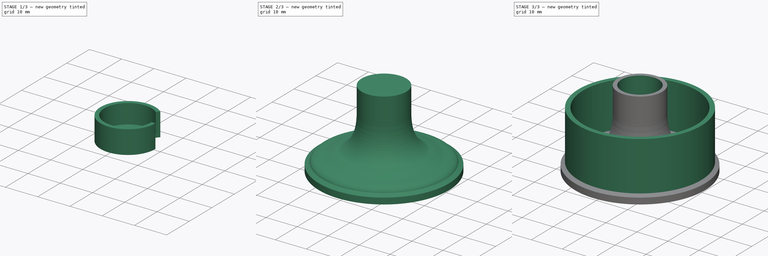
[diagram: build sequence overview — one tinted view per stage of 3, left to right]
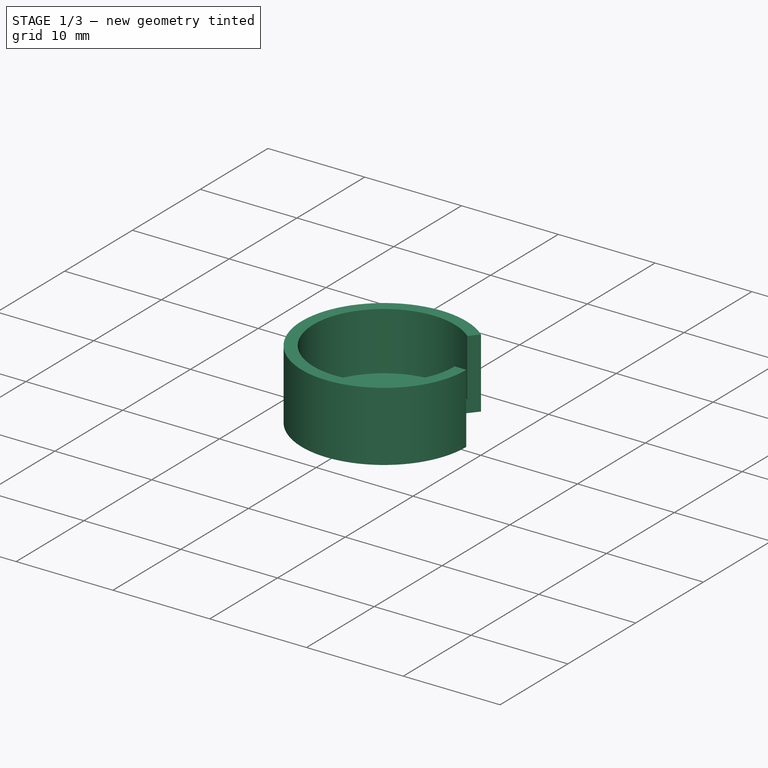
[diagram: stage 1 of 3 — iso view after this stage's code; geometry added in this stage tinted green]
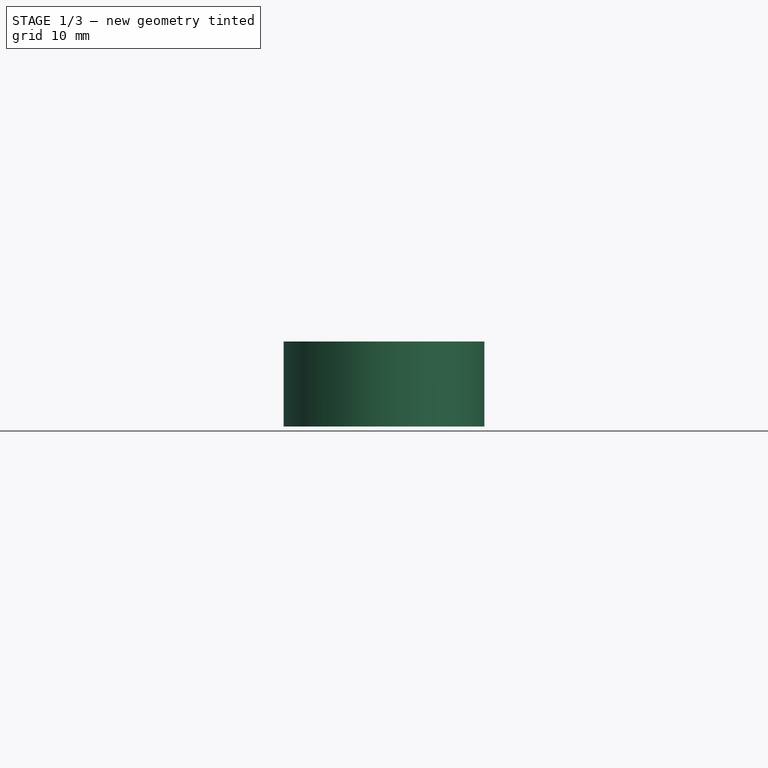
[diagram: stage 1 of 3 — front view after this stage's code; geometry added in this stage tinted green]
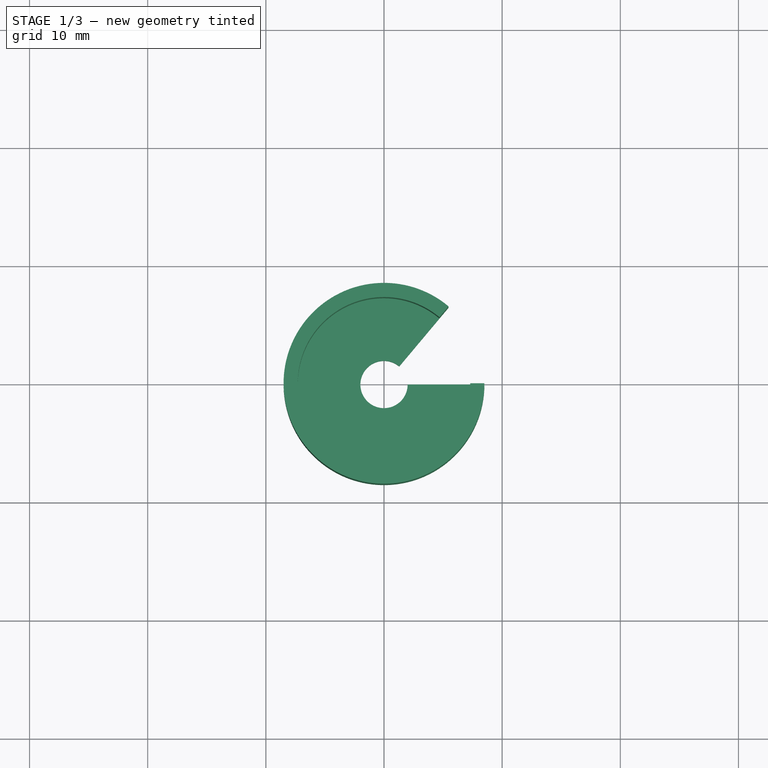
[diagram: stage 1 of 3 — top view after this stage's code; geometry added in this stage tinted green]
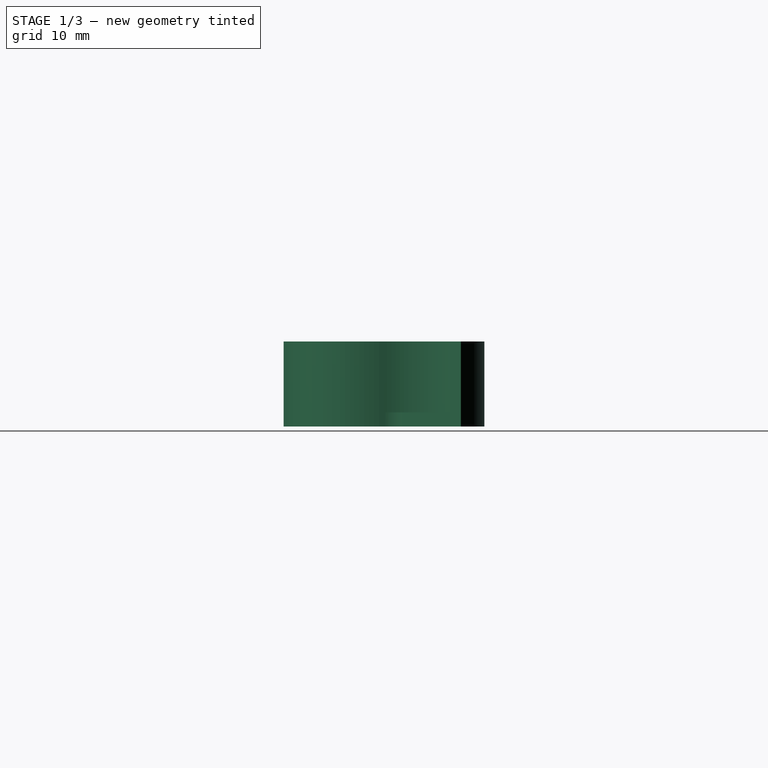
[diagram: stage 1 of 3 — right view after this stage's code; geometry added in this stage tinted green]
FCSTD DOCUMENT  (FreeCAD 0.20R29603 (Git))
Label: kerstbal
License: All rights reserved
LicenseURL: http://en.wikipedia.org/wiki/All_rights_reserved
objects: Sketcher::SketchObject×6, PartDesign::Revolution×4, PartDesign::Body×4, PartDesign::Hole×2, Spreadsheet::Sheet×1
note: 22 computed .brp shape members not serialized (recipe doc carries the construction recipe); baked Part::Feature solids carry a one-line shape summary decoded from their .brp

FEATURE [PartDesign::Body] Body002  label="bottom"
  Group = -> [Sketch003,Revolution002]
  Origin = -> Origin002
  Tip = -> Revolution002
FEATURE [Sketcher::SketchObject] Sketch004
  FullyConstrained = true
  MapMode = 5
  Placement = pos=(0,0,0) rot=(1,0,0;1.5708rad)
  Support = -> [XZ_Plane003]
  expr: Constraints[13] = <<dimensions>>.wall
  expr: Constraints[14] = <<dimensions>>.light_hole_r + <<dimensions>>.wall + 0.1
  expr: Constraints[15] = <<dimensions>>.wall
  expr: Constraints[16] = <<dimensions>>.cap_height
  sketch-geometry (6):
    g0: LineSegment StartX=0 StartY=0 StartZ=0 EndX=8.5 EndY=0 EndZ=0
    g1: LineSegment StartX=8.5 StartY=0 StartZ=0 EndX=8.5 EndY=7.2 EndZ=0
    g2: LineSegment StartX=8.5 StartY=7.2 StartZ=0 EndX=7.3 EndY=7.2 EndZ=0
    g3: LineSegment StartX=7.3 StartY=7.2 StartZ=0 EndX=7.3 EndY=1.2 EndZ=0
    g4: LineSegment StartX=7.3 StartY=1.2 StartZ=0 EndX=0 EndY=1.2 EndZ=0
    g5: LineSegment StartX=0 StartY=1.2 StartZ=0 EndX=0 EndY=0 EndZ=0
  constraints (17):
    c: Coincident(g-1,g0)
    c: PointOnObject(g0,g-1)
    c: Coincident(g0,g1)
    c: Vertical(g1)
    c: Coincident(g1,g2)
    c: Horizontal(g2)
    c: Coincident(g2,g3)
    c: Vertical(g3)
    c: Coincident(g3,g4)
    c: Horizontal(g4)
    c: Coincident(g4,g5)
    c: Coincident(g5,g0)
    c: Vertical(g5)
    c: DistanceY(g0,g4) = 1.2
    c: DistanceX(g4,g3) = 7.3
    c: DistanceX(g2,g1) = 1.2
    c: DistanceY(g3,g2) = 6
FEATURE [PartDesign::Revolution] Revolution003
  Angle = 310
  Axis = (0,-2e-16,1)
  Base = (0,0,0)
  Placement = pos=(0,0,0) rot=(1,0,0;1.5708rad)
  Profile = -> Sketch004
  ReferenceAxis = -> Sketch004 [V_Axis]
  Reversed = true
FEATURE [Sketcher::SketchObject] Sketch005
  FullyConstrained = true
  MapMode = 5
  Placement = pos=(0,0,0) rot=(1,0,0;3.14159rad)
  Support = -> [Revolution003]
  sketch-geometry (1):
    g0: Circle CenterX=0 CenterY=0 CenterZ=0 NormalX=0 NormalY=0 NormalZ=1 AngleXU=0 Radius=2
  constraints (2):
    c: Coincident(g0,g-1)
    c: Radius(g0) = 2
FEATURE [PartDesign::Hole] Hole001
  BaseFeature = -> Revolution003
  CustomThreadClearance = 0
  Depth = 25
  DepthType = 0
  Diameter = 4
  DrillForDepth = false
  DrillPoint = 1
  DrillPointAngle = 118
  HoleCutCountersinkAngle = 90
  HoleCutCustomValues = false
  HoleCutDepth = 0
  HoleCutDiameter = 6.1
  HoleCutType = 0
  ModelThread = false
  Placement = pos=(0,0,0) rot=(1,0,0;1.5708rad)
  Profile = -> Revolution003 [Face1]
  Tapered = false
  TaperedAngle = 90
  ThreadClass = 0
  ThreadDepth = 25
  ThreadDepthType = 0
  ThreadDirection = 0
  ThreadFit = 0
  ThreadSize = 0
  ThreadType = 0
  Threaded = false
  UseCustomThreadClearance = false
FEATURE [PartDesign::Body] Body003  label="dop"
  Group = -> [Sketch004,Revolution003,Sketch005,Hole001]
  Origin = -> Origin003
  Tip = -> Hole001
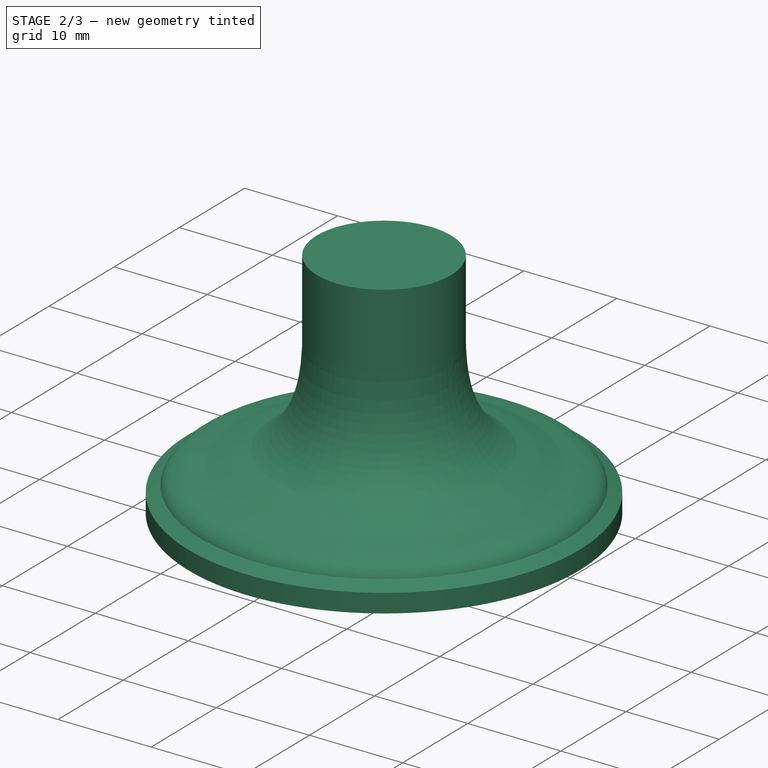
[diagram: stage 2 of 3 — iso view after this stage's code; geometry added in this stage tinted green]
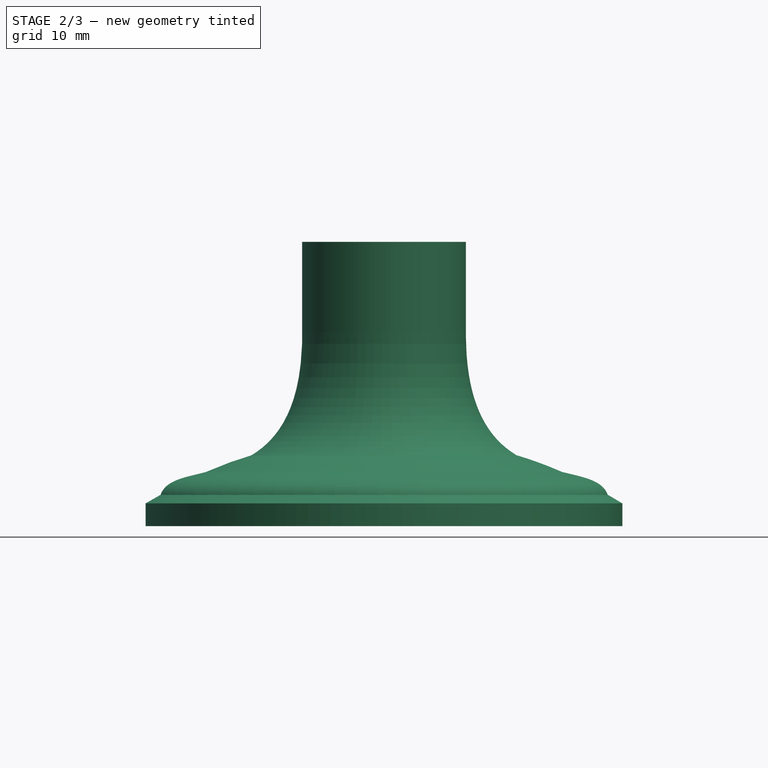
[diagram: stage 2 of 3 — front view after this stage's code; geometry added in this stage tinted green]
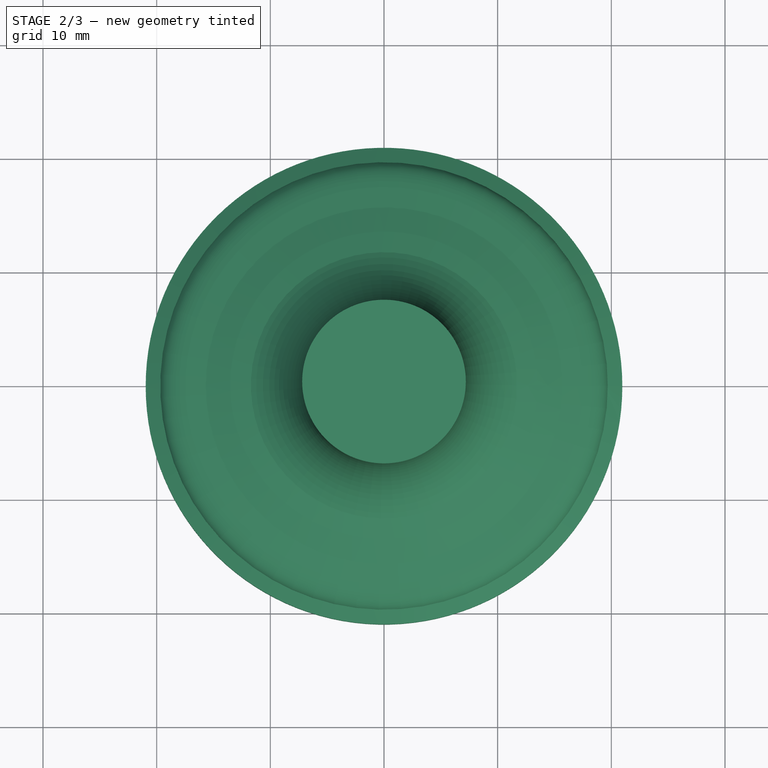
[diagram: stage 2 of 3 — top view after this stage's code; geometry added in this stage tinted green]
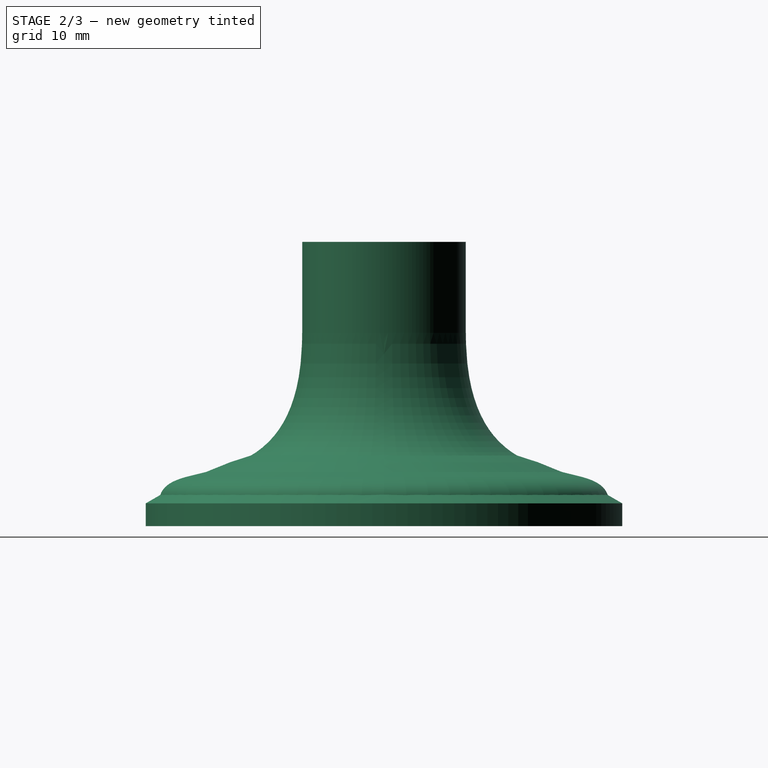
[diagram: stage 2 of 3 — right view after this stage's code; geometry added in this stage tinted green]
FEATURE [PartDesign::Body] Body  label="kaarshouder"
  Group = -> [Sketch,Revolution]
  Origin = -> Origin
  Tip = -> Revolution
FEATURE [Sketcher::SketchObject] Sketch001
  FullyConstrained = true
  MapMode = 5
  Placement = pos=(0,0,0) rot=(1,0,0;1.5708rad)
  Support = -> [XZ_Plane001]
  expr: Constraints[11] = <<dimensions>>.innerrim_r
  expr: Constraints[12] = <<dimensions>>.outerrim_r
  expr: Constraints[13] = <<dimensions>>.outerrim_high_r
  expr: Constraints[14] = <<dimensions>>.rim_height
  expr: Constraints[17] = <<dimensions>>.wall
  expr: Constraints[36] = <<dimensions>>.cap_height + 2
  expr: Constraints[40] = <<dimensions>>.light_hole_r + <<dimensions>>.wall
  sketch-geometry (16):
    g0: LineSegment StartX=16 StartY=0 StartZ=0 EndX=16 EndY=2 EndZ=0
    g1: LineSegment StartX=16 StartY=2 StartZ=0 EndX=18.6 EndY=2 EndZ=0
    g2: LineSegment StartX=18.6 StartY=2 StartZ=0 EndX=18.2 EndY=0 EndZ=0
    g3: LineSegment StartX=18.2 StartY=0 StartZ=0 EndX=19.8 EndY=0 EndZ=0
    g4: LineSegment StartX=19.8 StartY=0 StartZ=0 EndX=19.8 EndY=2 EndZ=0
    g5: LineSegment StartX=16 StartY=0 StartZ=0 EndX=0 EndY=0 EndZ=0
    g6-g9: Circle x4 (B-spline internal-alignment scaffolding for g10; pole/knot coordinates omitted)
    g10: BSplineCurve PolesCount=4 KnotsCount=2 Degree=3 IsPeriodic=0
    g11: GeomPoint X=19.8 Y=2 Z=0
    g12: GeomPoint X=7.2 Y=17 Z=0
    g13: LineSegment StartX=7.2 StartY=17 StartZ=0 EndX=7.2 EndY=25 EndZ=0
    g14: LineSegment StartX=7.2 StartY=25 StartZ=0 EndX=0 EndY=25 EndZ=0
    g15: LineSegment StartX=0 StartY=25 StartZ=0 EndX=0 EndY=0 EndZ=0
  constraints (40):
    c: PointOnObject(g0,g-1)
    c: Vertical(g0)
    c: Coincident(g0,g1)
    c: Horizontal(g1)
    c: Coincident(g1,g2)
    c: PointOnObject(g2,g-1)
    c: Coincident(g2,g3)
    c: Horizontal(g3)
    c: Coincident(g3,g4)
    c: Vertical(g4)
    c: Coincident(g0,g5)
    c: DistanceX(g-1,g0) = 16
    c: DistanceX(g-1,g2) = 18.2
    c: DistanceX(g-1,g1) = 18.6
    c: DistanceY(g2,g1) = 2
    c: Coincident(g5,g-1)
    c: Horizontal(g4,g1)
    c: DistanceX(g1,g4) = 1.2
    c: Weight(g6) = 1
    c: Coincident(g10,g4)
    c: Equal(g6,g7)
    c: Equal(g6,g8)
    c: Equal(g6,g9)
    c: InternalAlignment(g6-g9 -> g10) x4
    c: InternalAlignment(g11,g10)
    c: InternalAlignment(g12,g10)
    c: Vertical(g4,g7)
    c: Vertical(g10,g8)
    c: Coincident(g13,g10)
    c: Vertical(g13)
    c: Coincident(g14,g13)
    c: PointOnObject(g14,g-2)
    c: Horizontal(g14)
    c: DistanceY(g10,g13) = 8
    c: DistanceY(g5,g14) = 25
    c: DistanceY(g8,g10) = 16
    c: DistanceY(g4,g7) = 5
    c: DistanceX(g14,g13) = 7.2
    c: Coincident(g15,g5)
    c: Coincident(g14,g15)
FEATURE [PartDesign::Revolution] Revolution001
  Angle = 360
  Axis = (0,-2e-16,1)
  Base = (0,0,0)
  Placement = pos=(0,0,0) rot=(1,0,0;1.5708rad)
  Profile = -> Sketch001
  ReferenceAxis = -> Sketch001 [V_Axis]
  Reversed = true
FEATURE [PartDesign::Body] Body001  label="top"
  Group = -> [Sketch001,Revolution001,Sketch002,Hole]
  Origin = -> Origin001
  Tip = -> Hole
FEATURE [Sketcher::SketchObject] Sketch003
  FullyConstrained = true
  MapMode = 5
  Placement = pos=(0,0,0) rot=(1,0,0;1.5708rad)
  Support = -> [XZ_Plane002]
  expr: Constraints[14] = <<dimensions>>.innerrim_r
  expr: Constraints[15] = <<dimensions>>.outerrim_r
  expr: Constraints[16] = <<dimensions>>.outerrim_high_r
  expr: Constraints[17] = <<dimensions>>.rim_height
  expr: Constraints[25] = <<dimensions>>.wall
  sketch-geometry (9):
    g0: LineSegment StartX=0 StartY=8 StartZ=0 EndX=0 EndY=0 EndZ=0
    g1: LineSegment StartX=0 StartY=0 StartZ=0 EndX=16 EndY=0 EndZ=0
    g2: LineSegment StartX=16 StartY=0 StartZ=0 EndX=16 EndY=2 EndZ=0
    g3: LineSegment StartX=16 StartY=2 StartZ=0 EndX=18.6 EndY=2 EndZ=0
    g4: LineSegment StartX=18.6 StartY=2 StartZ=0 EndX=18.2 EndY=0 EndZ=0
    g5: LineSegment StartX=18.2 StartY=0 StartZ=0 EndX=20.9678 EndY=0 EndZ=0
    g6: LineSegment StartX=20.9678 StartY=0 StartZ=0 EndX=20.9678 EndY=2 EndZ=0
    g7: ArcOfCircle CenterX=0 CenterY=-31.6375 CenterZ=0 NormalX=0 NormalY=0 NormalZ=1 AngleXU=0 Radius=39.6375 StartAngle=1.01339 EndAngle=1.5708
    g8: LineSegment StartX=0 StartY=-31.6375 StartZ=0 EndX=19.1807 EndY=3.05015 EndZ=0
  constraints (27):
    c: PointOnObject(g0,g-2)
    c: Coincident(g0,g-1)
    c: Coincident(g0,g1)
    c: Horizontal(g1)
    c: Coincident(g1,g2)
    c: Coincident(g2,g3)
    c: Horizontal(g3)
    c: Coincident(g3,g4)
    c: Coincident(g4,g5)
    c: Horizontal(g5)
    c: Coincident(g5,g6)
    c: Vertical(g6)
    c: Vertical(g2)
    c: PointOnObject(g5,g-1)
    c: DistanceX(g1,g1) = 16
    c: DistanceX(g0,g4) = 18.2
    c: DistanceX(g0,g3) = 18.6
    c: DistanceY(g5,g6) = 2
    c: Horizontal(g6,g3)
    c: Coincident(g7,g6)
    c: Coincident(g7,g0)
    c: Vertical(g7,g0)
    c: Coincident(g8,g7)
    c: PointOnObject(g8,g7)
    c: PointOnObject(g3,g8)
    c: Distance(g8,g3) = 1.2
    c: DistanceY(g0,g0) = 8
FEATURE [PartDesign::Revolution] Revolution002
  Angle = 360
  Axis = (0,-2e-16,1)
  Base = (0,0,0)
  Placement = pos=(0,0,0) rot=(1,0,0;1.5708rad)
  Profile = -> Sketch003
  ReferenceAxis = -> Sketch003 [V_Axis]
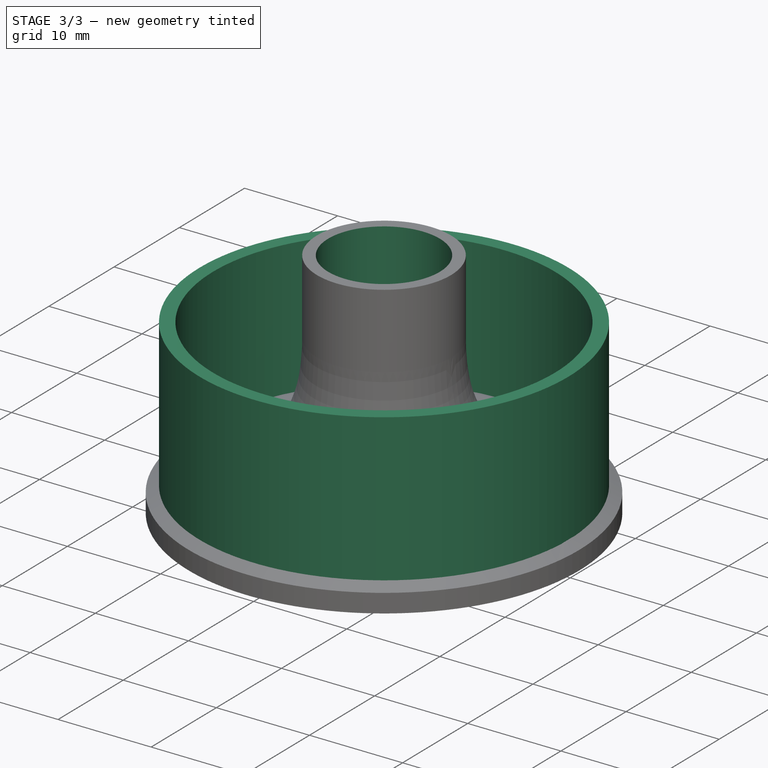
[diagram: stage 3 of 3 — iso view after this stage's code; geometry added in this stage tinted green]
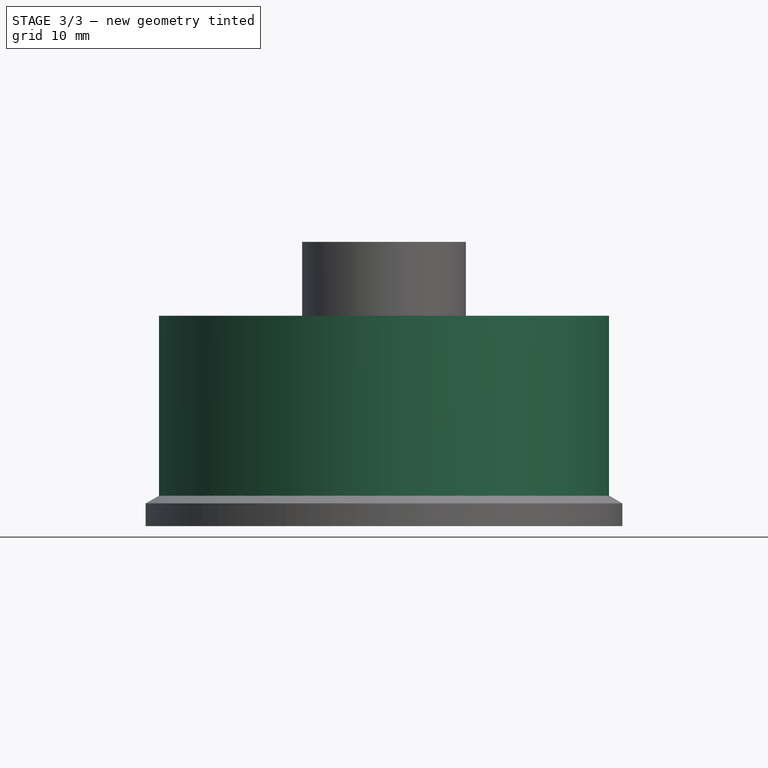
[diagram: stage 3 of 3 — front view after this stage's code; geometry added in this stage tinted green]
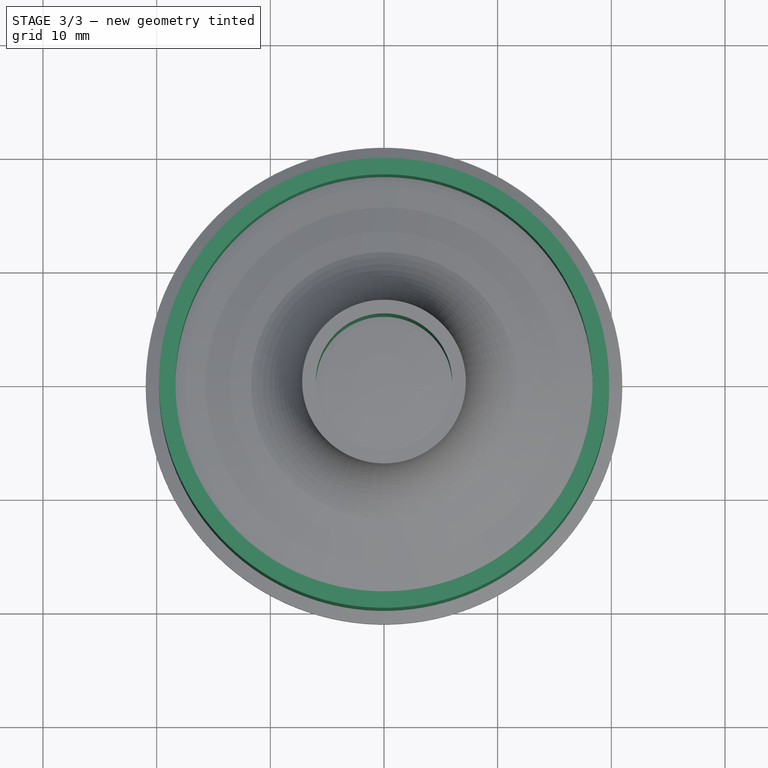
[diagram: stage 3 of 3 — top view after this stage's code; geometry added in this stage tinted green]
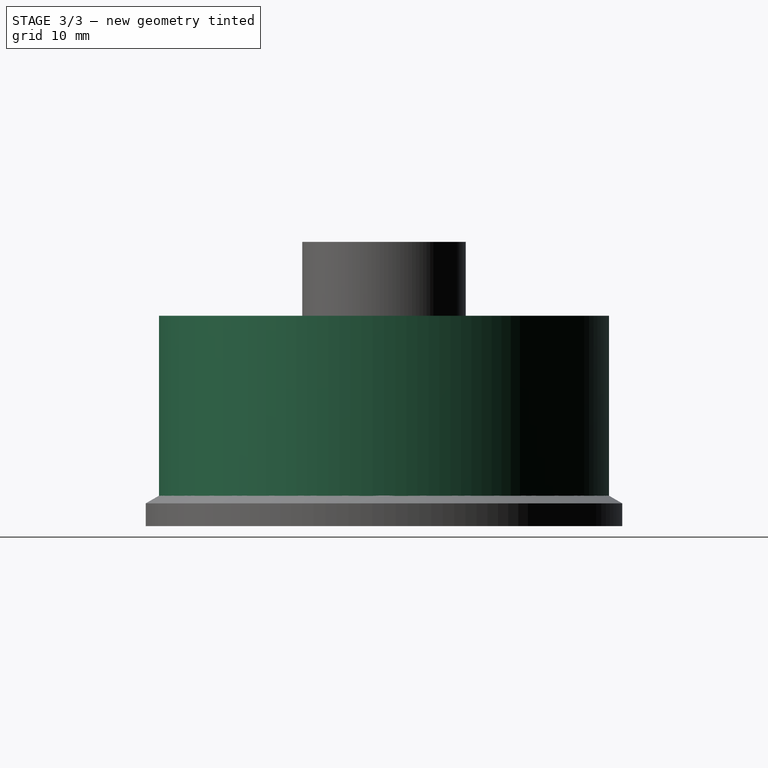
[diagram: stage 3 of 3 — right view after this stage's code; geometry added in this stage tinted green]
FEATURE [Sketcher::SketchObject] Sketch
  FullyConstrained = true
  Placement = pos=(0,0,0) rot=(1,0,0;1.5708rad)
  expr: Constraints[21] = <<dimensions>>.wall
  expr: Constraints[25] = <<dimensions>>.wall
  expr: Constraints[27] = <<dimensions>>.outerrim_r
  expr: Constraints[29] = <<dimensions>>.wall
  sketch-geometry (10):
    g0: LineSegment StartX=16 StartY=0 StartZ=0 EndX=16 EndY=2 EndZ=0
    g1: LineSegment StartX=16 StartY=2 StartZ=0 EndX=18.6 EndY=2 EndZ=0
    g2: LineSegment StartX=18.6 StartY=2 StartZ=0 EndX=18.2 EndY=0 EndZ=0
    g3: LineSegment StartX=18.2 StartY=0 StartZ=0 EndX=19.8 EndY=0 EndZ=0
    g4: LineSegment StartX=19.8 StartY=0 StartZ=0 EndX=19.8 EndY=18.5 EndZ=0
    g5: LineSegment StartX=19.8 StartY=18.5 StartZ=0 EndX=18.35 EndY=18.5 EndZ=0
    g6: LineSegment StartX=18.35 StartY=18.5 StartZ=0 EndX=18.35 EndY=3.2 EndZ=0
    g7: LineSegment StartX=18.35 StartY=3.2 StartZ=0 EndX=14.8 EndY=3.2 EndZ=0
    g8: LineSegment StartX=14.8 StartY=3.2 StartZ=0 EndX=14.8 EndY=0 EndZ=0
    g9: LineSegment StartX=14.8 StartY=0 StartZ=0 EndX=16 EndY=0 EndZ=0
  constraints (30):
    c: PointOnObject(g0,g-1)
    c: Vertical(g0)
    c: Coincident(g0,g1)
    c: Horizontal(g1)
    c: Coincident(g1,g2)
    c: PointOnObject(g2,g-1)
    c: Coincident(g2,g3)
    c: Horizontal(g3)
    c: Coincident(g3,g4)
    c: Vertical(g4)
    c: Coincident(g4,g5)
    c: Horizontal(g5)
    c: Coincident(g5,g6)
    c: Vertical(g6)
    c: Coincident(g6,g7)
    c: Horizontal(g7)
    c: Coincident(g7,g8)
    c: PointOnObject(g8,g-1)
    c: Vertical(g8)
    c: Coincident(g8,g9)
    c: Coincident(g9,g0)
    c: DistanceY(g0,g7) = 1.2
    c: DistanceY(g3,g1) = 2
    c: DistanceX(g-1,g0) = 16
    c: DistanceX(g-1,g5) = 18.35
    c: DistanceX(g7,g0) = 1.2
    c: DistanceX(g-1,g1) = 18.6
    c: DistanceX(g-1,g2) = 18.2
    c: DistanceY(g6,g5) = 15.3
    c: DistanceX(g1,g3) = 1.2
FEATURE [Spreadsheet::Sheet] Spreadsheet  label="dimensions"
  cells = A1=wall; B1(wall)=1.2; A2=innerrim_r; B2(innerrim_r)=16; A3=outerrim_r; B3(outerrim_r)=18.2; A4=outerrim_high_r; B4(outerrim_high_r)=18.6; A5=rim_height; B5(rim_height)=2; A7=light_hole_r; B7(light_hole_r)=6; A8=cap_height; B8(cap_height)=6
FEATURE [PartDesign::Revolution] Revolution
  Angle = 360
  Axis = (0,2e-16,1)
  Base = (0,0,0)
  Placement = pos=(0,0,0) rot=(1,0,0;1.5708rad)
  Profile = -> Sketch
  ReferenceAxis = -> Sketch [V_Axis]
  Reversed = true
FEATURE [Sketcher::SketchObject] Sketch002
  FullyConstrained = true
  MapMode = 5
  Placement = pos=(0,5.6e-15,25) rot=(0,0,1;3.14159rad)
  Support = -> [Revolution001]
  expr: Constraints[1] = 6 - <<dimensions>>.wall
  sketch-geometry (1):
    g0: Circle CenterX=0 CenterY=0 CenterZ=0 NormalX=0 NormalY=0 NormalZ=1 AngleXU=0 Radius=4.8
  constraints (2):
    c: Coincident(g0,g-1)
    c: Radius(g0) = 4.8
FEATURE [PartDesign::Hole] Hole
  BaseFeature = -> Revolution001
  CustomThreadClearance = 0
  Depth = 121.588
  DepthType = 1
  Diameter = 12
  DrillForDepth = false
  DrillPoint = 1
  DrillPointAngle = 118
  HoleCutCountersinkAngle = 90
  HoleCutCustomValues = false
  HoleCutDepth = 0
  HoleCutDiameter = 0
  HoleCutType = 0
  ModelThread = false
  Placement = pos=(0,0,0) rot=(1,0,0;1.5708rad)
  Profile = -> Revolution001 [Face8]
  Tapered = false
  TaperedAngle = 90
  ThreadClass = 0
  ThreadDepth = 121.588
  ThreadDepthType = 0
  ThreadDirection = 0
  ThreadFit = 0
  ThreadSize = 0
  ThreadType = 0
  Threaded = false
  UseCustomThreadClearance = false
  expr: Diameter = 2 * <<dimensions>>.light_hole_r
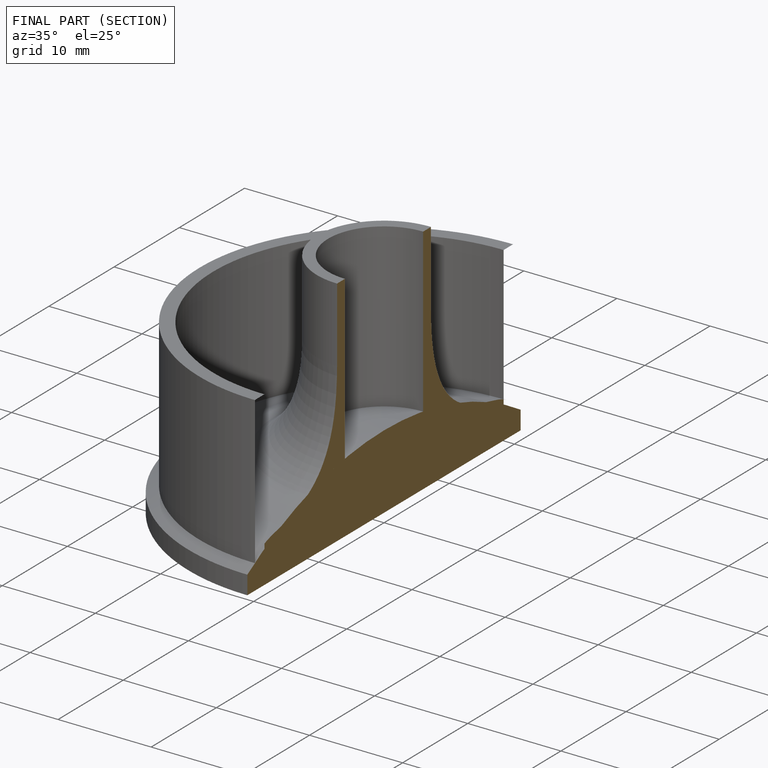
[diagram: finished part — half-section view (interior)]
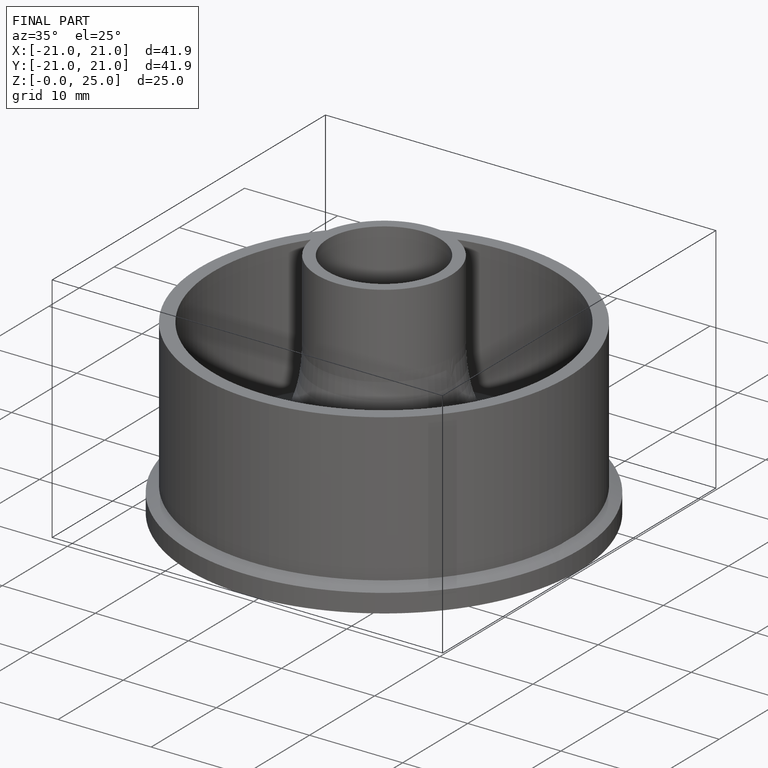
[diagram: finished part — iso view with bounding-box wireframe]
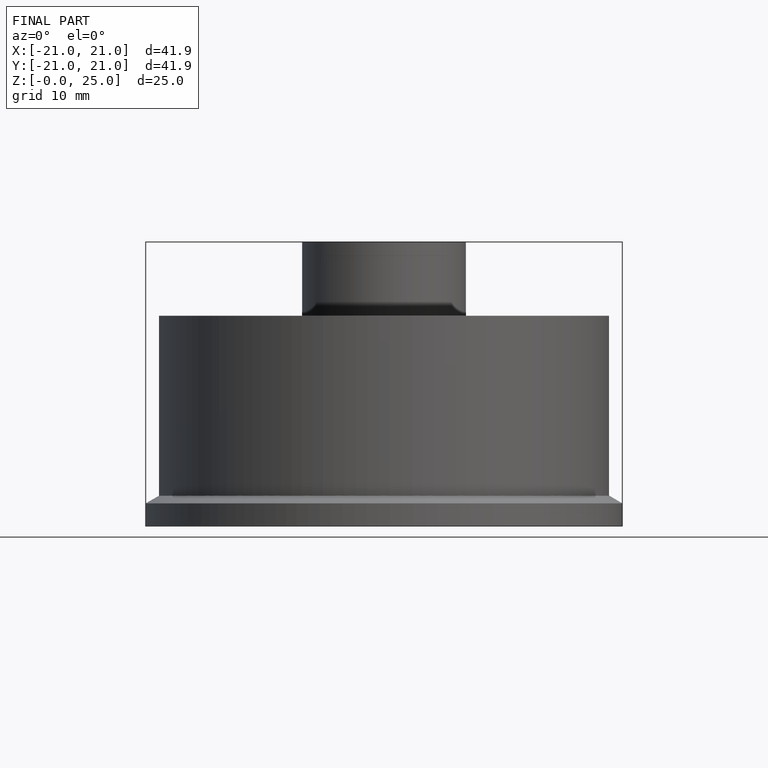
[diagram: finished part — front view with bounding-box wireframe]
